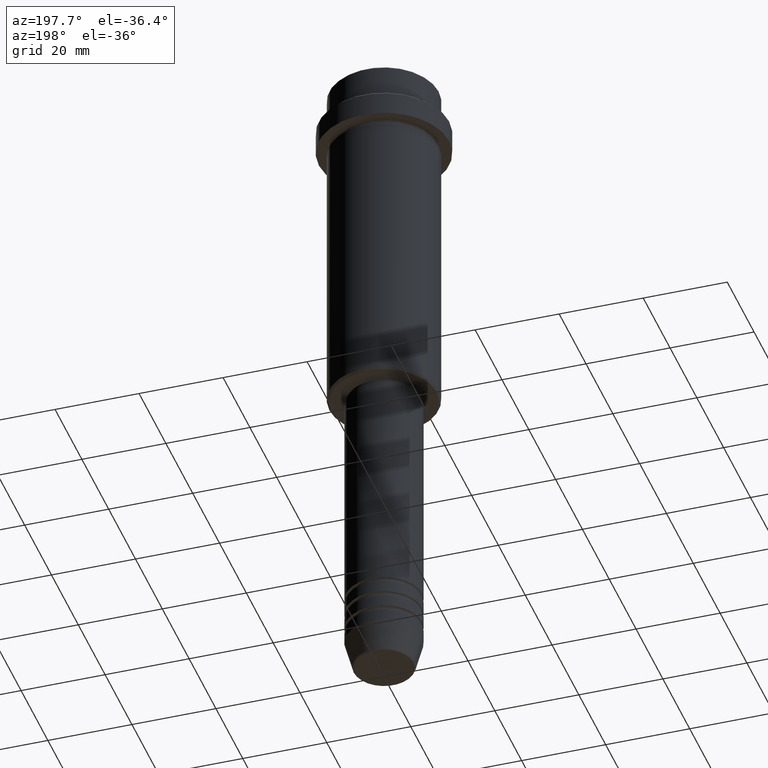
[diagram: clean part render]
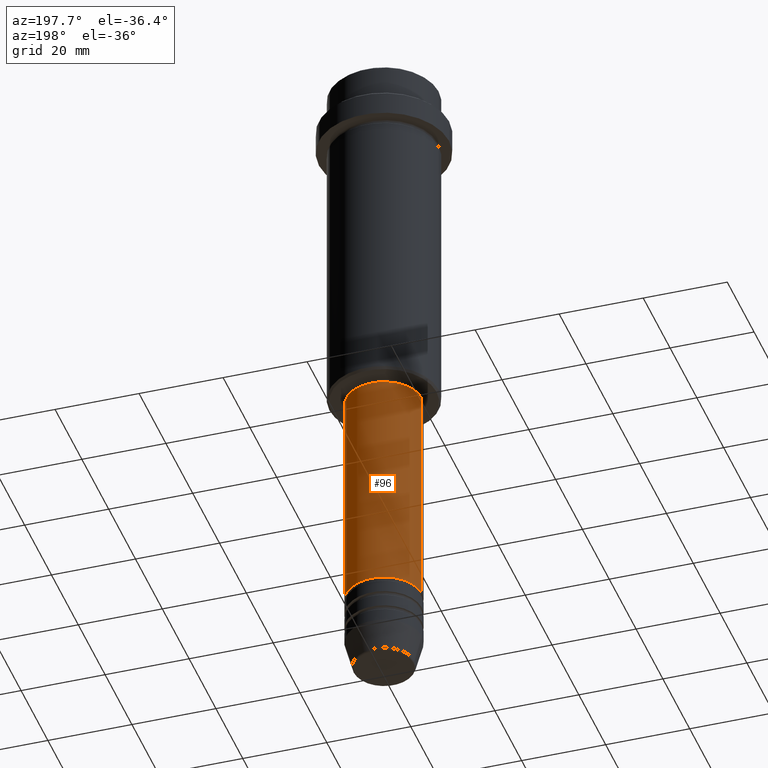
[diagram: same view with one face highlighted and labeled with its STEP entity id]
A machine part, auxiliary view. The second image highlights one B-rep face of the part: STEP entity #96.
In plain terms, the highlighted cylindrical surface (partial cylindrical patch) has radius 9 mm, axis along (-0, -0, 1).
Its self-contained STEP definition (entity closure, byte-faithful):
#25 = CIRCLE ( 'NONE', #940, 9.000000000000001776 ) ;
#89 = DIRECTION ( 'NONE',  ( -0.000000000000000000, -0.000000000000000000, 1.000000000000000000 ) ) ;
#96 = ADVANCED_FACE ( 'NONE', ( #951 ), #1288, .T. ) ;
#131 = CARTESIAN_POINT ( 'NONE',  ( -9.000000000000001776, 1.102182119232617911E-15, -86.00000000000000000 ) ) ;
#234 = CIRCLE ( 'NONE', #1032, 9.000000000000000000 ) ;
#238 = VERTEX_POINT ( 'NONE', #131 ) ;
#259 = EDGE_CURVE ( 'NONE', #941, #489, #1221, .T. ) ;
#275 = CARTESIAN_POINT ( 'NONE',  ( 9.000000000000001776, 0.000000000000000000, -86.00000000000000000 ) ) ;
#321 = ORIENTED_EDGE ( 'NONE', *, *, #697, .T. ) ;
#328 = CARTESIAN_POINT ( 'NONE',  ( 0.000000000000000000, 0.000000000000000000, -86.00000000000000000 ) ) ;
#341 = CARTESIAN_POINT ( 'NONE',  ( 9.000000000000001776, 0.000000000000000000, 0.000000000000000000 ) ) ;
#489 = VERTEX_POINT ( 'NONE', #275 ) ;
#508 = CARTESIAN_POINT ( 'NONE',  ( 9.000000000000000000, 0.000000000000000000, -140.9999999999999147 ) ) ;
#548 = AXIS2_PLACEMENT_3D ( 'NONE', #655, #1058, #1090 ) ;
#549 = DIRECTION ( 'NONE',  ( -0.000000000000000000, -0.000000000000000000, 1.000000000000000000 ) ) ;
#600 = EDGE_CURVE ( 'NONE', #1276, #238, #1192, .T. ) ;
#655 = CARTESIAN_POINT ( 'NONE',  ( 0.000000000000000000, 0.000000000000000000, 0.000000000000000000 ) ) ;
#666 = DIRECTION ( 'NONE',  ( -0.000000000000000000, -0.000000000000000000, 1.000000000000000000 ) ) ;
#697 = EDGE_CURVE ( 'NONE', #941, #1276, #234, .T. ) ;
#700 = CARTESIAN_POINT ( 'NONE',  ( 0.000000000000000000, 0.000000000000000000, -140.9999999999999147 ) ) ;
#768 = DIRECTION ( 'NONE',  ( 1.000000000000000000, 0.000000000000000000, 0.000000000000000000 ) ) ;
#874 = ORIENTED_EDGE ( 'NONE', *, *, #259, .F. ) ;
#940 = AXIS2_PLACEMENT_3D ( 'NONE', #328, #666, #1411 ) ;
#941 = VERTEX_POINT ( 'NONE', #508 ) ;
#951 = FACE_OUTER_BOUND ( 'NONE', #1315, .T. ) ;
#956 = CARTESIAN_POINT ( 'NONE',  ( -9.000000000000001776, 1.102182119232617911E-15, 0.000000000000000000 ) ) ;
#1011 = VECTOR ( 'NONE', #89, 1000.000000000000000 ) ;
#1032 = AXIS2_PLACEMENT_3D ( 'NONE', #700, #1249, #768 ) ;
#1043 = EDGE_CURVE ( 'NONE', #489, #238, #25, .T. ) ;
#1058 = DIRECTION ( 'NONE',  ( -0.000000000000000000, -0.000000000000000000, 1.000000000000000000 ) ) ;
#1089 = ORIENTED_EDGE ( 'NONE', *, *, #600, .T. ) ;
#1090 = DIRECTION ( 'NONE',  ( 1.000000000000000000, 0.000000000000000000, 0.000000000000000000 ) ) ;
#1097 = ORIENTED_EDGE ( 'NONE', *, *, #1043, .F. ) ;
#1192 = LINE ( 'NONE', #956, #1011 ) ;
#1221 = LINE ( 'NONE', #341, #1374 ) ;
#1249 = DIRECTION ( 'NONE',  ( -0.000000000000000000, -0.000000000000000000, 1.000000000000000000 ) ) ;
#1276 = VERTEX_POINT ( 'NONE', #1369 ) ;
#1288 = CYLINDRICAL_SURFACE ( 'NONE', #548, 9.000000000000001776 ) ;
#1315 = EDGE_LOOP ( 'NONE', ( #321, #1089, #1097, #874 ) ) ;
#1369 = CARTESIAN_POINT ( 'NONE',  ( -9.000000000000000000, 1.102182119232617714E-15, -140.9999999999999147 ) ) ;
#1374 = VECTOR ( 'NONE', #549, 1000.000000000000000 ) ;
#1411 = DIRECTION ( 'NONE',  ( 1.000000000000000000, 0.000000000000000000, 0.000000000000000000 ) ) ;